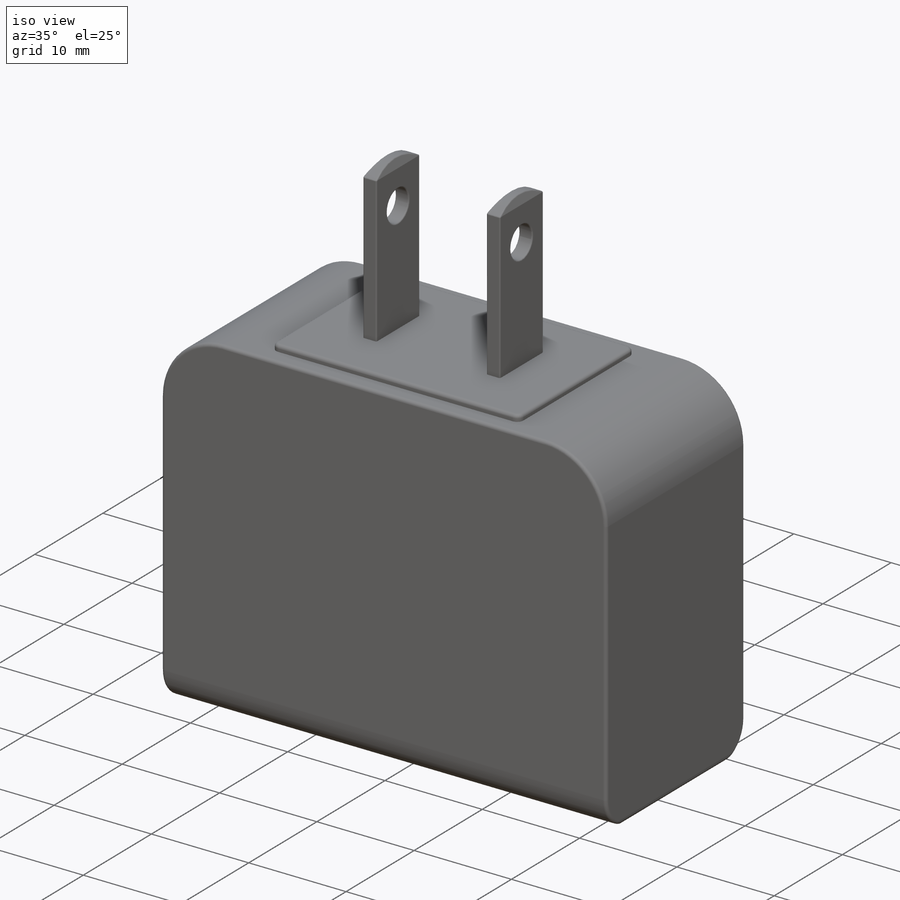
[diagram: iso view]
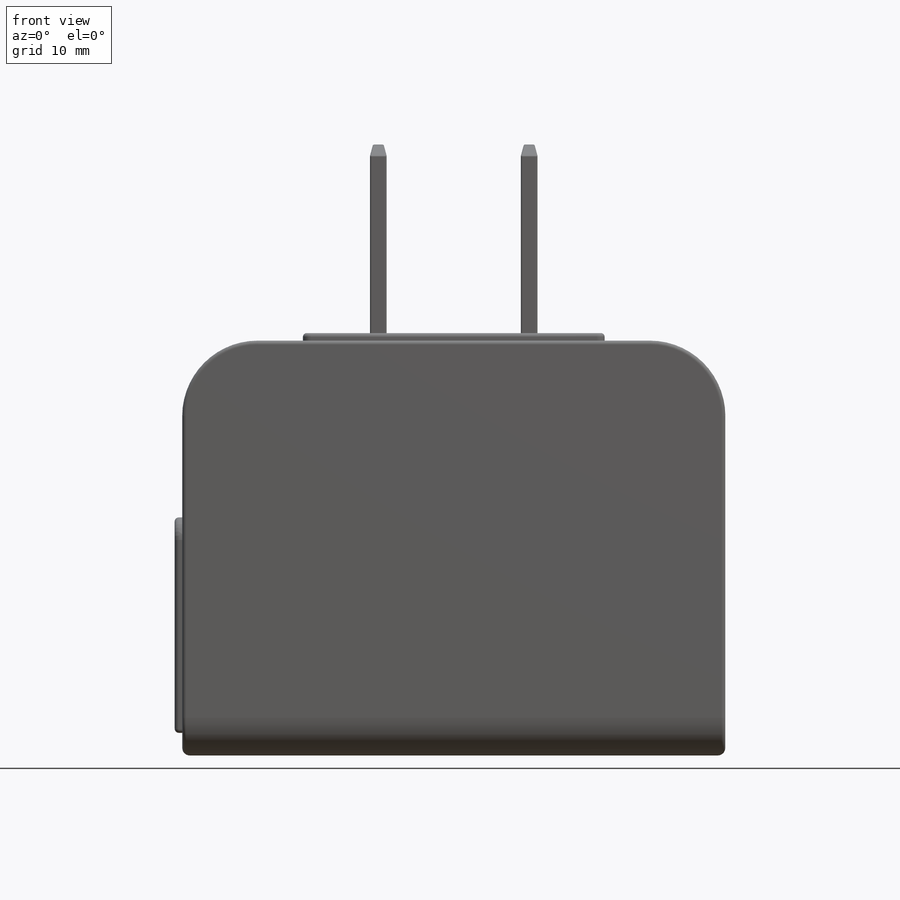
[diagram: front view]
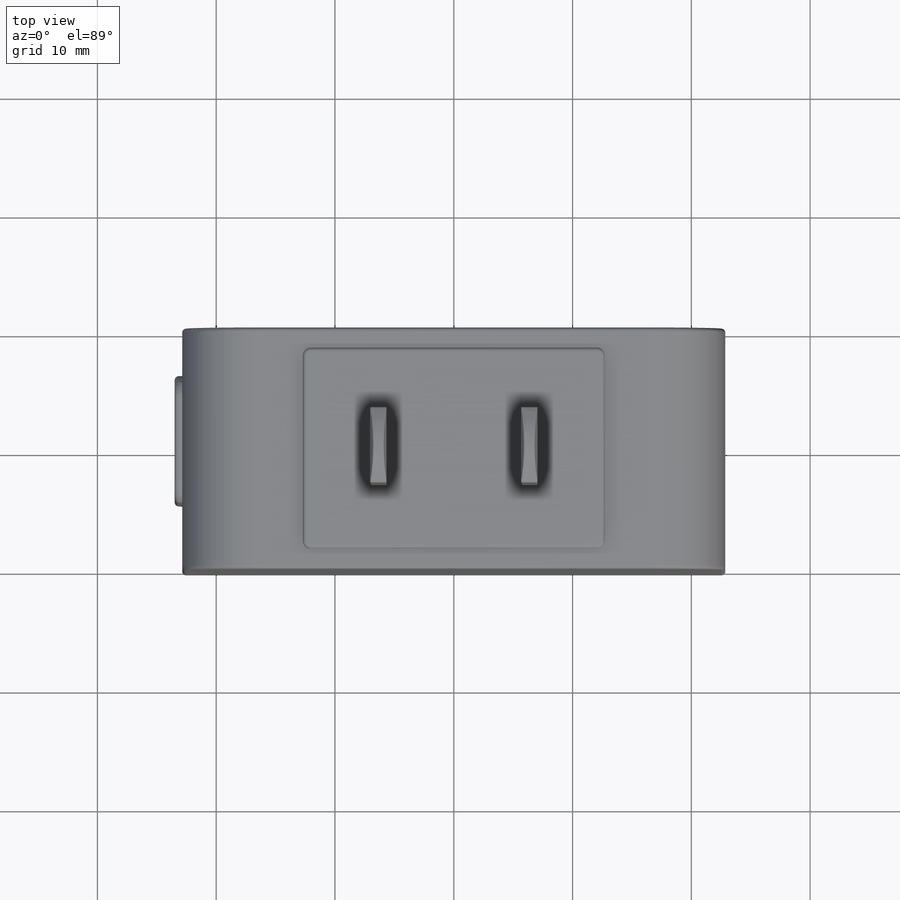
[diagram: top view]
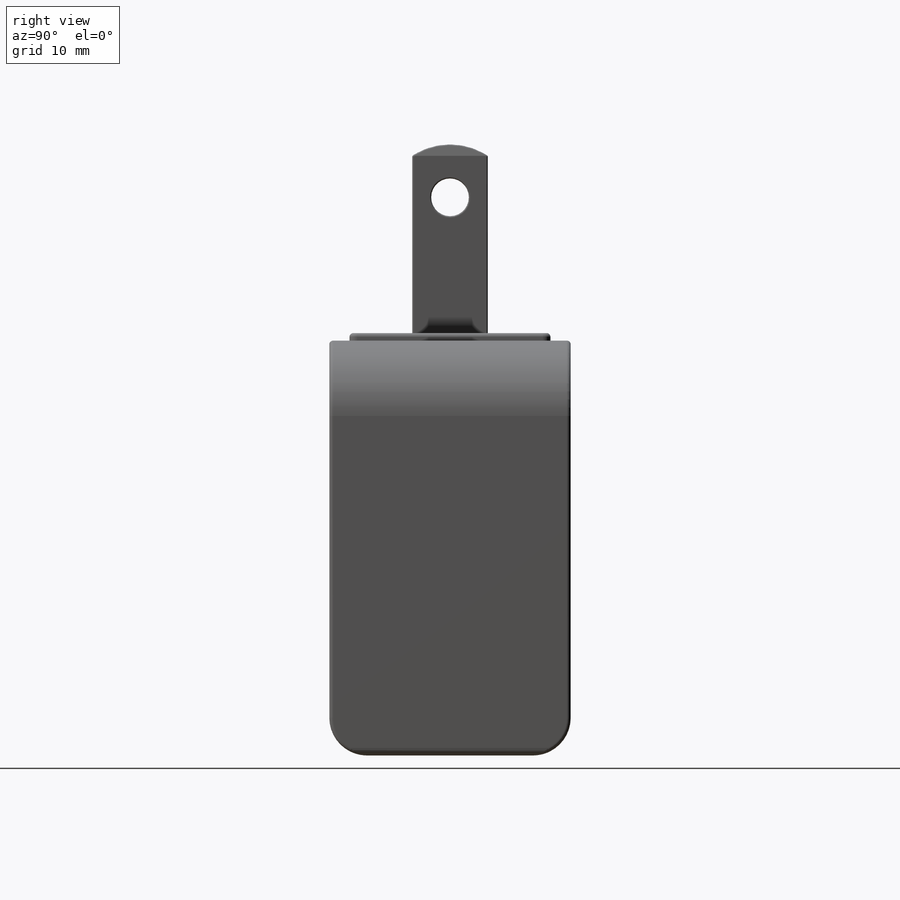
[diagram: right view]
SOLIDWORKS PART (.sldprt)
format: sldprt  version: not decoded by parser v0  size: 659,456 bytes
history: native  units: mm
features: sketch x12, fillet x9, cut_extrude x6, extrude x4, plane x2, material x1, mirror x1 (+13 scaffold rows collapsed)
feature tree (48):
  scaffold x13  (default folders/planes/origin — collapsed)
  material  "Material <not specified>"
  sketch  "Sketch1"  dims[D1=45.72mm D2=34.925mm]
  extrude  "Boss-Extrude1"  Depth=20.32mm
  sketch  "Sketch2"  dims[D3=0.635mm D1=25.4mm D2=16.9164mm]
  extrude  "Boss-Extrude2"  Depth=0.635mm
  sketch  "Sketch3"  dims[c1.D5=1.905mm c1.D6=0.3175mm c1.D1=10.6934mm c1.D2=18.1356mm c1.D3=3.4544mm c1.D4=1.905mm c2.D3=1.905mm c2.D4=3.81mm]
  extrude  "Boss-Extrude3"  Depth=0.635mm
  sketch  "Sketch7"  dims[D2=1.27mm D3=1.27mm D4=0.3175mm D1=1.143mm]
  cut_extrude  "Cut-Extrude1"  Depth=1.27mm
  sketch  "Sketch8"  dims[D2=13.3096mm D1=1.4605mm]
  cut_extrude  "Cut-Extrude2"  Depth=10.16mm
  fillet  "Fillet1"  Radius=0.3175mm
  fillet  "Fillet2"  Radius=0.3429mm
  fillet  "Fillet3"  Radius=0.127mm
  sketch  "Sketch9"  dims[D1=6.35mm D2=1.397mm D3=6.35mm]
  extrude  "Boss-Extrude4"  Depth=15.875mm
  sketch  "Sketch10"  dims[c1.D2=~5.767917mm c1.D6=~5.767917mm c1.D1=~5.767917mm c2.D2=~5.767917mm c2.D3=~5.767917mm c2.D1=0.9525mm c3.D3=~4.815417mm c3.D4=1.143mm c3.D5=6.35mm c3.D6=~10.107083mm c3.D7=16.0655mm c4.D6=~10.107083mm c4.D7=16.0655mm c5.D6=16.0655mm c5.D2=~10.107083mm c5.D3=14.9225mm c6.D2=14.9225mm c6.D1=~10.107083mm c7.D2=6.35mm c7.D4=0.1905mm]
  cut_extrude  "Cut-Extrude4"  [1 undecoded]
  sketch  "Sketch11"  dims[D1=3.175mm D2=11.43mm D3=3.175mm]
  cut_extrude  "Cut-Extrude5"  [1 undecoded]
  sketch  "Sketch12"
  plane  "Plane2"
  sketch  "Sketch13"  dims[D1=~1.307136mm D2=6.35mm]
  cut_extrude  "Cut-Extrude6"  [1 undecoded]
  sketch  "Sketch14"
  plane  "Plane3"
  sketch  "Sketch16"  dims[D1=6.35mm D2=1.27mm]
  cut_extrude  "Cut-Extrude7"  [1 undecoded]
  fillet  "Fillet5"  Radius=0.127mm
  fillet  "Fillet6"  Radius=0.127mm
  mirror  "Mirror1"
  fillet  "Fillet7"  Radius=6.35mm
  fillet  "Fillet8"  Radius=0.635mm
  fillet  "Fillet9"  Radius=3.175mm
  fillet  "Fillet10"  Radius=0.3175mm
decode coverage: 25 of 32 modeling features carry decoded parameters
note: ~ marks probable driven/reference dimensions
note: 4 parameter values undecoded
summary: no parameter record found for 4 features
note: suppression state not decoded; provenance and decode notes live in map.json
